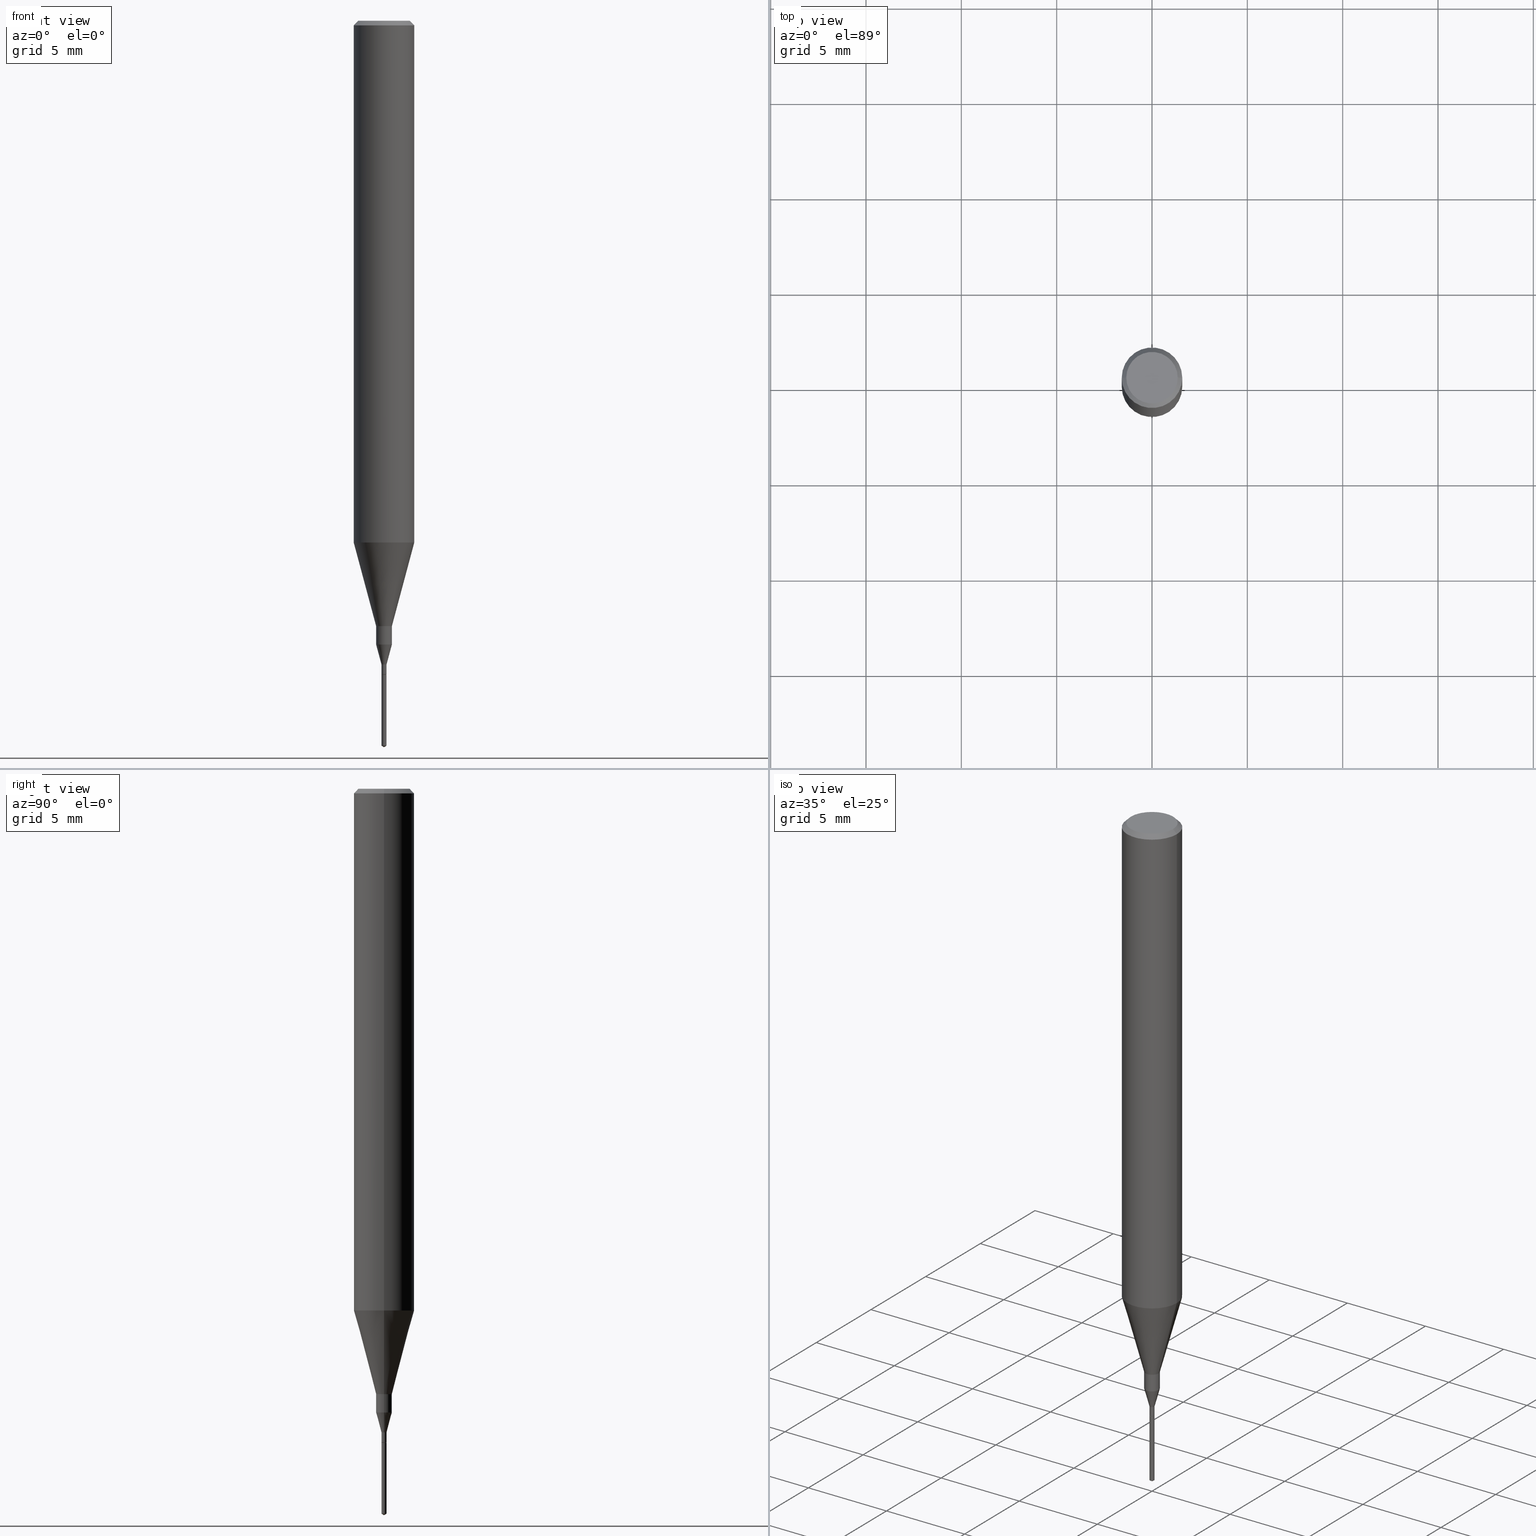
[diagram: canonical four-view strip — front | top / right | iso, engineering-drawing reading convention]
A machine part, canonical four-view strip (front | top / right | iso — engineering-drawing reading convention). The complete STEP part file that produces these views, byte-faithful:
ISO-10303-21;
HEADER;
FILE_DESCRIPTION (( 'STEP AP203' ),
    '1' );
FILE_NAME ('07092.STEP',
    '2024-04-19T13:29:50',
    ( '' ),
    ( '' ),
    'SwSTEP 2.0',
    'SolidWorks 2023',
    '' );
FILE_SCHEMA (( 'CONFIG_CONTROL_DESIGN' ));
ENDSEC;

DATA;
#1 = CARTESIAN_POINT ( 'NONE',  ( 2.292627005798580623E-31, -3.273263755165470184E-17, -0.009375000000000060368 ) ) ;
#2 = ORIENTED_EDGE ( 'NONE', *, *, #30, .T. ) ;
#3 = DATE_AND_TIME ( #411, #558 ) ;
#4 = EDGE_CURVE ( 'NONE', #181, #564, #294, .T. ) ;
#5 = CARTESIAN_POINT ( 'NONE',  ( -3.666055405781629191E-17, -0.005250000000005225313, -1.496845481750105122 ) ) ;
#6 = ORIENTED_EDGE ( 'NONE', *, *, #193, .T. ) ;
#7 = VECTOR ( 'NONE', #198, 39.37007874015748143 ) ;
#8 = SECURITY_CLASSIFICATION_LEVEL ( 'unclassified' ) ;
#9 = AXIS2_PLACEMENT_3D ( 'NONE', #542, #92, #83 ) ;
#10 = CC_DESIGN_APPROVAL ( #590, ( #425 ) ) ;
#11 = FACE_OUTER_BOUND ( 'NONE', #12, .T. ) ;
#12 = EDGE_LOOP ( 'NONE', ( #6, #280, #59, #104 ) ) ;
#13 = ORIENTED_EDGE ( 'NONE', *, *, #193, .F. ) ;
#14 = COORDINATED_UNIVERSAL_TIME_OFFSET ( 5, 0, .BEHIND. ) ;
#15 = VERTEX_POINT ( 'NONE', #292 ) ;
#16 = CONICAL_SURFACE ( 'NONE', #342, 0.01625000000000000056, 0.2617993877991502960 ) ;
#17 = EDGE_LOOP ( 'NONE', ( #184, #224, #277, #373 ) ) ;
#18 = APPLICATION_CONTEXT ( 'configuration controlled 3d designs of mechanical parts and assemblies' ) ;
#19 = CARTESIAN_POINT ( 'NONE',  ( 3.301382888349935078E-29, -4.713499807438246596E-15, -1.350000000000000089 ) ) ;
#20 = ORIENTED_EDGE ( 'NONE', *, *, #4, .F. ) ;
#21 = DIRECTION ( 'NONE',  ( 1.000000000000000000, -6.982962677686267499E-15, 4.876176775795936353E-29 ) ) ;
#22 = EDGE_CURVE ( 'NONE', #181, #191, #100, .T. ) ;
#23 = ORIENTED_EDGE ( 'NONE', *, *, #532, .F. ) ;
#24 = DIRECTION ( 'NONE',  ( -2.449828643397946418E-29, 3.485237803807878340E-15, 1.000000000000000000 ) ) ;
#25 = VECTOR ( 'NONE', #428, 39.37007874015748143 ) ;
#26 = CIRCLE ( 'NONE', #415, 0.06250000000000000000 ) ;
#27 = CARTESIAN_POINT ( 'NONE',  ( 0.01624999999999999709, -1.134731435124018242E-16, 7.923787260668394963E-31 ) ) ;
#28 = DIRECTION ( 'NONE',  ( -2.445468806185136597E-29, 3.491481338843145583E-15, 1.000000000000000000 ) ) ;
#29 = ORIENTED_EDGE ( 'NONE', *, *, #485, .T. ) ;
#30 = EDGE_CURVE ( 'NONE', #564, #478, #195, .T. ) ;
#31 = CARTESIAN_POINT ( 'NONE',  ( -0.05312499999999999861, 3.873362110279099094E-16, -5.787680772773044021E-18 ) ) ;
#32 = CARTESIAN_POINT ( 'NONE',  ( 3.149635291256962736E-29, -4.496844456069888565E-15, -1.287947441116742864 ) ) ;
#33 = APPROVAL ( #39, 'UNSPECIFIED' ) ;
#34 = CARTESIAN_POINT ( 'NONE',  ( 0.000000000000000000, 0.000000000000000000, 0.000000000000000000 ) ) ;
#35 = DIRECTION ( 'NONE',  ( -2.445468806185136877E-29, 3.491481338843145188E-15, 1.000000000000000000 ) ) ;
#36 = APPROVAL_PERSON_ORGANIZATION ( #447, #33, #400 ) ;
#37 = DIRECTION ( 'NONE',  ( -2.445468806185136597E-29, 3.491481338843145583E-15, 1.000000000000000000 ) ) ;
#38 = PLANE ( 'NONE',  #324 ) ;
#39 = APPROVAL_STATUS ( 'not_yet_approved' ) ;
#40 = EDGE_CURVE ( 'NONE', #552, #419, #433, .T. ) ;
#41 = CARTESIAN_POINT ( 'NONE',  ( 3.301382888349935078E-29, -4.713499807438246596E-15, -1.350000000000000089 ) ) ;
#42 = DIRECTION ( 'NONE',  ( 1.000000000000000000, 0.000000000000000000, 0.000000000000000000 ) ) ;
#43 = DIRECTION ( 'NONE',  ( -6.982962677686265133E-15, -1.000000000000000000, 0.000000000000000000 ) ) ;
#44 = ORIENTED_EDGE ( 'NONE', *, *, #579, .T. ) ;
#45 = CIRCLE ( 'NONE', #110, 0.005249999999999999459 ) ;
#46 = CYLINDRICAL_SURFACE ( 'NONE', #9, 0.005250000000000001193 ) ;
#47 = DIRECTION ( 'NONE',  ( 2.445468806185136597E-29, -3.491481338843145583E-15, -1.000000000000000000 ) ) ;
#48 = VERTEX_POINT ( 'NONE', #338 ) ;
#49 =( LENGTH_UNIT ( ) NAMED_UNIT ( * ) SI_UNIT ( $, .METRE. ) );
#50 = CARTESIAN_POINT ( 'NONE',  ( 3.300160153946842277E-29, -4.711754066768825092E-15, -1.349500000000000144 ) ) ;
#51 = ORIENTED_EDGE ( 'NONE', *, *, #371, .F. ) ;
#52 = PERSON_AND_ORGANIZATION_ROLE ( 'design_owner' ) ;
#53 = LINE ( 'NONE', #135, #194 ) ;
#54 = ORIENTED_EDGE ( 'NONE', *, *, #407, .T. ) ;
#55 = VECTOR ( 'NONE', #367, 39.37007874015748143 ) ;
#56 = AXIS2_PLACEMENT_3D ( 'NONE', #208, #155, #339 ) ;
#57 = EDGE_LOOP ( 'NONE', ( #246, #382, #370, #61 ) ) ;
#58 = EDGE_CURVE ( 'NONE', #516, #234, #525, .T. ) ;
#59 = ORIENTED_EDGE ( 'NONE', *, *, #290, .F. ) ;
#60 = COORDINATED_UNIVERSAL_TIME_OFFSET ( 5, 0, .BEHIND. ) ;
#61 = ORIENTED_EDGE ( 'NONE', *, *, #514, .F. ) ;
#62 = DIRECTION ( 'NONE',  ( -2.445468806185136597E-29, 3.491481338843145583E-15, 1.000000000000000000 ) ) ;
#63 = CIRCLE ( 'NONE', #156, 0.05312499999999999861 ) ;
#64 = CARTESIAN_POINT ( 'NONE',  ( 0.005250000000000054970, -3.666055405785328825E-17, 2.559992807292892898E-31 ) ) ;
#65 = ADVANCED_FACE ( 'NONE', ( #153 ), #126, .T. ) ;
#66 = DIRECTION ( 'NONE',  ( 0.2588190451025216277, 1.565188264969619995E-15, 0.9659258262890679791 ) ) ;
#67 = EDGE_LOOP ( 'NONE', ( #190, #29, #13, #51 ) ) ;
#68 = CARTESIAN_POINT ( 'NONE',  ( 0.005250000000000100940, -4.676839253380394232E-15, -1.328999999999999959 ) ) ;
#69 = VERTEX_POINT ( 'NONE', #399 ) ;
#70 = CARTESIAN_POINT ( 'NONE',  ( 3.661129155694912763E-29, -5.225291231752093132E-15, -1.496845481750105122 ) ) ;
#71 = AXIS2_PLACEMENT_3D ( 'NONE', #245, #409, #21 ) ;
#72 = EDGE_CURVE ( 'NONE', #509, #230, #487, .T. ) ;
#73 = VECTOR ( 'NONE', #232, 39.37007874015747433 ) ;
#74 = CARTESIAN_POINT ( 'NONE',  ( -0.005250000000000054970, 3.730349362740565034E-17, -2.582440922383852549E-31 ) ) ;
#75 = DIRECTION ( 'NONE',  ( 1.000000000000000000, -6.982962677686266711E-15, 4.876176775795935793E-29 ) ) ;
#76 = LINE ( 'NONE', #493, #173 ) ;
#77 = CARTESIAN_POINT ( 'NONE',  ( 2.634730117954813298E-29, -3.761696332605275695E-15, -1.077392650149939346 ) ) ;
#78 = LINE ( 'NONE', #260, #295 ) ;
#79 = LINE ( 'NONE', #215, #91 ) ;
#80 = VECTOR ( 'NONE', #401, 39.37007874015748854 ) ;
#81 = LINE ( 'NONE', #171, #212 ) ;
#82 = AXIS2_PLACEMENT_3D ( 'NONE', #267, #182, #86 ) ;
#83 = DIRECTION ( 'NONE',  ( -6.982962677686265133E-15, -1.000000000000000000, 0.000000000000000000 ) ) ;
#84 = EDGE_CURVE ( 'NONE', #323, #48, #434, .T. ) ;
#85 = CARTESIAN_POINT ( 'NONE',  ( -0.004750000000000000749, -4.677099800315530409E-15, -1.350000000000000089 ) ) ;
#86 = DIRECTION ( 'NONE',  ( 1.000000000000000000, -6.982962677686274599E-15, 0.000000000000000000 ) ) ;
#87 = APPLICATION_CONTEXT ( 'configuration controlled 3d designs of mechanical parts and assemblies' ) ;
#88 = DIRECTION ( 'NONE',  ( -2.445468806185136597E-29, 3.491481338843145583E-15, 1.000000000000000000 ) ) ;
#89 = CARTESIAN_POINT ( 'NONE',  ( 0.000000000000000000, 0.000000000000000000, 0.000000000000000000 ) ) ;
#90 = AXIS2_PLACEMENT_3D ( 'NONE', #329, #183, #377 ) ;
#91 = VECTOR ( 'NONE', #300, 39.37007874015748143 ) ;
#92 = DIRECTION ( 'NONE',  ( -2.449828643397946418E-29, 3.485237803807878340E-15, 1.000000000000000000 ) ) ;
#93 = CARTESIAN_POINT ( 'NONE',  ( -0.06250000000000006939, 4.440892098500631092E-16, -3.074334431409319267E-30 ) ) ;
#94 = ORIENTED_EDGE ( 'NONE', *, *, #72, .T. ) ;
#95 = FACE_OUTER_BOUND ( 'NONE', #376, .T. ) ;
#96 = CARTESIAN_POINT ( 'NONE',  ( 2.292627005798580623E-31, -3.273263755165470184E-17, -0.009375000000000060368 ) ) ;
#97 = ORIENTED_EDGE ( 'NONE', *, *, #204, .F. ) ;
#98 = DIRECTION ( 'NONE',  ( -2.449828643397946418E-29, 3.485237803807878340E-15, 1.000000000000000000 ) ) ;
#99 = VERTEX_POINT ( 'NONE', #301 ) ;
#100 = CIRCLE ( 'NONE', #361, 0.004750000000000000749 ) ;
#101 = ADVANCED_FACE ( 'NONE', ( #348 ), #306, .F. ) ;
#102 = ORIENTED_EDGE ( 'NONE', *, *, #231, .F. ) ;
#103 = CC_DESIGN_DATE_AND_TIME_ASSIGNMENT ( #186, #366, ( #425 ) ) ;
#104 = ORIENTED_EDGE ( 'NONE', *, *, #40, .F. ) ;
#105 = ORIENTED_EDGE ( 'NONE', *, *, #84, .F. ) ;
#106 = ADVANCED_FACE ( 'NONE', ( #538 ), #127, .T. ) ;
#107 = PERSON_AND_ORGANIZATION_ROLE ( 'design_supplier' ) ;
#108 = VECTOR ( 'NONE', #386, 39.37007874015748143 ) ;
#109 = DIRECTION ( 'NONE',  ( 0.7071067811865454633, -7.319954787623246579E-15, -0.7071067811865493491 ) ) ;
#110 = AXIS2_PLACEMENT_3D ( 'NONE', #70, #24, #161 ) ;
#111 = CC_DESIGN_APPROVAL ( #33, ( #375 ) ) ;
#112 = EDGE_LOOP ( 'NONE', ( #388, #417, #456, #313 ) ) ;
#113 = CYLINDRICAL_SURFACE ( 'NONE', #344, 0.06250000000000006939 ) ;
#114 = ORIENTED_EDGE ( 'NONE', *, *, #543, .F. ) ;
#115 = CYLINDRICAL_SURFACE ( 'NONE', #138, 0.005250000000000054970 ) ;
#116 = ORIENTED_EDGE ( 'NONE', *, *, #407, .F. ) ;
#117 = DIRECTION ( 'NONE',  ( 2.449828643397946138E-29, -3.485237803807878340E-15, -1.000000000000000000 ) ) ;
#118 = EDGE_CURVE ( 'NONE', #234, #478, #119, .T. ) ;
#119 = CIRCLE ( 'NONE', #479, 0.005250000000000100940 ) ;
#120 = ORIENTED_EDGE ( 'NONE', *, *, #118, .F. ) ;
#121 = CARTESIAN_POINT ( 'NONE',  ( 2.634730117954813298E-29, -3.761696332605275695E-15, -1.077392650149939346 ) ) ;
#122 = CARTESIAN_POINT ( 'NONE',  ( 2.634730117954813298E-29, -3.761696332605275695E-15, -1.077392650149939346 ) ) ;
#123 = DIRECTION ( 'NONE',  ( -2.445468806185136597E-29, 3.491481338843145583E-15, 1.000000000000000000 ) ) ;
#124 = LINE ( 'NONE', #439, #518 ) ;
#125 = EDGE_CURVE ( 'NONE', #274, #15, #76, .T. ) ;
#126 = CONICAL_SURFACE ( 'NONE', #414, 0.01625000000000000056, 0.2617993877991502960 ) ;
#127 = CYLINDRICAL_SURFACE ( 'NONE', #469, 0.005250000000000001193 ) ;
#128 = ORIENTED_EDGE ( 'NONE', *, *, #84, .T. ) ;
#129 = DIRECTION ( 'NONE',  ( -0.7071067811866248443, 7.493145998870633417E-15, 0.7071067811864701902 ) ) ;
#130 = DIRECTION ( 'NONE',  ( -2.449828643397946418E-29, 3.485237803807878340E-15, 1.000000000000000000 ) ) ;
#131 = ADVANCED_FACE ( 'NONE', ( #449 ), #566, .T. ) ;
#132 = LINE ( 'NONE', #508, #55 ) ;
#133 = EDGE_LOOP ( 'NONE', ( #561, #318, #555, #406 ) ) ;
#134 = CALENDAR_DATE ( 2024, 19, 4 ) ;
#135 = CARTESIAN_POINT ( 'NONE',  ( 0.01625000000000000056, -4.610317599582291030E-15, -1.287947441116742864 ) ) ;
#136 = CLOSED_SHELL ( 'NONE', ( #106, #426, #568, #575, #421 ) ) ;
#137 = ORIENTED_EDGE ( 'NONE', *, *, #268, .F. ) ;
#138 = AXIS2_PLACEMENT_3D ( 'NONE', #486, #534, #393 ) ;
#139 =( NAMED_UNIT ( * ) SI_UNIT ( $, .STERADIAN. ) SOLID_ANGLE_UNIT ( ) );
#140 = CARTESIAN_POINT ( 'NONE',  ( 3.056836007731421306E-29, -4.364351673553932471E-15, -1.250000000000000000 ) ) ;
#141 = ORIENTED_EDGE ( 'NONE', *, *, #72, .F. ) ;
#142 = DATE_AND_TIME ( #464, #202 ) ;
#143 = CARTESIAN_POINT ( 'NONE',  ( 0.06250000000000000000, -4.691678049070463404E-16, -0.009375000000000060368 ) ) ;
#144 = ORIENTED_EDGE ( 'NONE', *, *, #532, .T. ) ;
#145 = EDGE_CURVE ( 'NONE', #15, #431, #252, .T. ) ;
#146 = ORIENTED_EDGE ( 'NONE', *, *, #223, .F. ) ;
#147 = VECTOR ( 'NONE', #364, 39.37007874015748143 ) ;
#148 = PRODUCT_RELATED_PRODUCT_CATEGORY ( 'detail', '', ( #494 ) ) ;
#149 = ORIENTED_EDGE ( 'NONE', *, *, #223, .T. ) ;
#150 = ADVANCED_FACE ( 'NONE', ( #544 ), #38, .F. ) ;
#151 = CARTESIAN_POINT ( 'NONE',  ( 3.301382888349935078E-29, -4.713499807438246596E-15, -1.350000000000000089 ) ) ;
#152 = DIRECTION ( 'NONE',  ( 1.000000000000000000, -6.982962677686267499E-15, 4.876176775795935232E-29 ) ) ;
#153 = FACE_OUTER_BOUND ( 'NONE', #67, .T. ) ;
#154 = AXIS2_PLACEMENT_3D ( 'NONE', #169, #584, #355 ) ;
#155 = DIRECTION ( 'NONE',  ( -2.449828643397946418E-29, 3.485237803807878340E-15, 1.000000000000000000 ) ) ;
#156 = AXIS2_PLACEMENT_3D ( 'NONE', #296, #37, #432 ) ;
#157 = CARTESIAN_POINT ( 'NONE',  ( 0.004750000000000000749, -4.746668880157255952E-15, -1.350000000000000089 ) ) ;
#158 = DIRECTION ( 'NONE',  ( -2.445468806185136597E-29, 3.491481338843145583E-15, 1.000000000000000000 ) ) ;
#159 = EDGE_LOOP ( 'NONE', ( #413, #44, #2, #120 ) ) ;
#160 = ADVANCED_FACE ( 'NONE', ( #442 ), #482, .T. ) ;
#161 = DIRECTION ( 'NONE',  ( -6.982962677686265922E-15, -1.000000000000000000, 0.000000000000000000 ) ) ;
#162 = ORIENTED_EDGE ( 'NONE', *, *, #429, .F. ) ;
#163 = DIRECTION ( 'NONE',  ( -6.982962677686265922E-15, -1.000000000000000000, 0.000000000000000000 ) ) ;
#164 = CIRCLE ( 'NONE', #372, 0.01624999999999999709 ) ;
#165 =( GEOMETRIC_REPRESENTATION_CONTEXT ( 3 ) GLOBAL_UNCERTAINTY_ASSIGNED_CONTEXT ( ( #396 ) ) GLOBAL_UNIT_ASSIGNED_CONTEXT ( ( #360, #499, #139 ) ) REPRESENTATION_CONTEXT ( 'NONE', 'WORKASPACE' ) );
#166 = DIRECTION ( 'NONE',  ( 1.000000000000000000, -6.982962677686177569E-15, 0.000000000000000000 ) ) ;
#167 = CARTESIAN_POINT ( 'NONE',  ( 2.634730117954813298E-29, -3.761696332605275695E-15, -1.077392650149939346 ) ) ;
#168 = EDGE_CURVE ( 'NONE', #191, #516, #81, .T. ) ;
#169 = CARTESIAN_POINT ( 'NONE',  ( 3.301382888349935078E-29, -4.713499807438246596E-15, -1.350000000000000089 ) ) ;
#170 = COORDINATED_UNIVERSAL_TIME_OFFSET ( 5, 0, .BEHIND. ) ;
#171 = CARTESIAN_POINT ( 'NONE',  ( -0.004750000000000000749, -4.679749027489641610E-15, -1.350000000000000089 ) ) ;
#172 = CARTESIAN_POINT ( 'NONE',  ( 2.292627005798580623E-31, -3.273263755165470184E-17, -0.009375000000000060368 ) ) ;
#173 = VECTOR ( 'NONE', #541, 39.37007874015748143 ) ;
#174 = DIRECTION ( 'NONE',  ( -2.445468806185136597E-29, 3.491481338843145583E-15, 1.000000000000000000 ) ) ;
#175 = CONICAL_SURFACE ( 'NONE', #462, 0.06250000000000000000, 0.7853981633974456145 ) ;
#176 = COORDINATED_UNIVERSAL_TIME_OFFSET ( 5, 0, .BEHIND. ) ;
#177 = DIRECTION ( 'NONE',  ( -2.449828643397946418E-29, 3.485237803807878340E-15, 1.000000000000000000 ) ) ;
#178 = PERSON_AND_ORGANIZATION ( #327, #222 ) ;
#179 = CC_DESIGN_PERSON_AND_ORGANIZATION_ASSIGNMENT ( #238, #513, ( #425 ) ) ;
#180 = CYLINDRICAL_SURFACE ( 'NONE', #71, 0.01624999999999999709 ) ;
#181 = VERTEX_POINT ( 'NONE', #535 ) ;
#182 = DIRECTION ( 'NONE',  ( -2.445468806185136597E-29, 3.491481338843145583E-15, 1.000000000000000000 ) ) ;
#183 = DIRECTION ( 'NONE',  ( -2.445468806185136597E-29, 3.491481338843145583E-15, 1.000000000000000000 ) ) ;
#184 = ORIENTED_EDGE ( 'NONE', *, *, #485, .F. ) ;
#185 = AXIS2_PLACEMENT_3D ( 'NONE', #583, #130, #308 ) ;
#186 = DATE_AND_TIME ( #321, #520 ) ;
#187 = DIRECTION ( 'NONE',  ( -2.445468806185136597E-29, 3.491481338843145583E-15, 1.000000000000000000 ) ) ;
#188 = EDGE_CURVE ( 'NONE', #419, #323, #124, .T. ) ;
#189 = ORIENTED_EDGE ( 'NONE', *, *, #22, .F. ) ;
#190 = ORIENTED_EDGE ( 'NONE', *, *, #211, .T. ) ;
#191 = VERTEX_POINT ( 'NONE', #85 ) ;
#192 = CIRCLE ( 'NONE', #528, 0.06250000000000000000 ) ;
#193 = EDGE_CURVE ( 'NONE', #552, #567, #242, .T. ) ;
#194 = VECTOR ( 'NONE', #66, 39.37007874015748143 ) ;
#195 = LINE ( 'NONE', #64, #352 ) ;
#196 = PERSON_AND_ORGANIZATION ( #327, #222 ) ;
#197 = FACE_OUTER_BOUND ( 'NONE', #350, .T. ) ;
#198 = DIRECTION ( 'NONE',  ( -2.445468806185136877E-29, 3.491481338843145188E-15, 1.000000000000000000 ) ) ;
#199 = DIRECTION ( 'NONE',  ( -2.445468806185136597E-29, 3.491481338843145583E-15, 1.000000000000000000 ) ) ;
#200 = ORIENTED_EDGE ( 'NONE', *, *, #30, .F. ) ;
#201 = DIRECTION ( 'NONE',  ( -2.449828643397946418E-29, 3.485237803807878340E-15, 1.000000000000000000 ) ) ;
#202 = LOCAL_TIME ( 9, 29, 50.00000000000000000, #14 ) ;
#203 = ORIENTED_EDGE ( 'NONE', *, *, #188, .F. ) ;
#204 = EDGE_CURVE ( 'NONE', #567, #547, #303, .T. ) ;
#205 = CARTESIAN_POINT ( 'NONE',  ( -0.005250000000000009000, -4.674450573141419996E-15, -1.349500000000000144 ) ) ;
#206 = ORIENTED_EDGE ( 'NONE', *, *, #125, .T. ) ;
#207 = CC_DESIGN_DATE_AND_TIME_ASSIGNMENT ( #581, #265, ( #536 ) ) ;
#208 = CARTESIAN_POINT ( 'NONE',  ( -9.278108940561071411E-28, 1.319778012860802633E-13, 37.87007874015748143 ) ) ;
#209 = DIRECTION ( 'NONE',  ( -2.445468806185136597E-29, 3.491481338843145583E-15, 1.000000000000000000 ) ) ;
#210 = DIRECTION ( 'NONE',  ( 1.000000000000000000, -6.982962677686264344E-15, 0.000000000000000000 ) ) ;
#211 = EDGE_CURVE ( 'NONE', #478, #234, #262, .T. ) ;
#212 = VECTOR ( 'NONE', #129, 39.37007874015748143 ) ;
#213 = CIRCLE ( 'NONE', #235, 0.005249999999999999459 ) ;
#214 = CARTESIAN_POINT ( 'NONE',  ( -0.06250000000000000000, -1.453125275228401137E-15, -0.009375000000000060368 ) ) ;
#215 = CARTESIAN_POINT ( 'NONE',  ( 3.662971404622334007E-29, -5.244714250307038079E-15, -1.500000000000000222 ) ) ;
#216 = DIRECTION ( 'NONE',  ( 1.000000000000000000, -6.982962677686336919E-15, 0.000000000000000000 ) ) ;
#217 = EDGE_LOOP ( 'NONE', ( #320, #379 ) ) ;
#218 = DIRECTION ( 'NONE',  ( -2.445468806185136877E-29, 3.491481338843145188E-15, 1.000000000000000000 ) ) ;
#219 = APPROVAL_STATUS ( 'not_yet_approved' ) ;
#220 = CIRCLE ( 'NONE', #557, 0.005250000000000001193 ) ;
#221 = CARTESIAN_POINT ( 'NONE',  ( 0.000000000000000000, 0.000000000000000000, 0.000000000000000000 ) ) ;
#222 = ORGANIZATION ( 'UNSPECIFIED', 'UNSPECIFIED', '' ) ;
#223 = EDGE_CURVE ( 'NONE', #323, #282, #78, .T. ) ;
#224 = ORIENTED_EDGE ( 'NONE', *, *, #118, .T. ) ;
#225 = DIRECTION ( 'NONE',  ( 0.000000000000000000, 0.000000000000000000, 1.000000000000000000 ) ) ;
#226 = CYLINDRICAL_SURFACE ( 'NONE', #391, 0.005250000000000054970 ) ;
#227 = ORIENTED_EDGE ( 'NONE', *, *, #378, .F. ) ;
#228 = APPLICATION_PROTOCOL_DEFINITION ( 'international standard', 'config_control_design', 1994, #18 ) ;
#229 = DIRECTION ( 'NONE',  ( -2.445468806185136597E-29, 3.491481338843145583E-15, 1.000000000000000000 ) ) ;
#230 = VERTEX_POINT ( 'NONE', #214 ) ;
#231 = EDGE_CURVE ( 'NONE', #69, #282, #395, .T. ) ;
#232 = DIRECTION ( 'NONE',  ( -0.2588190451025214611, 5.211531920934551042E-15, 0.9659258262890682012 ) ) ;
#233 = VECTOR ( 'NONE', #218, 39.37007874015748143 ) ;
#234 = VERTEX_POINT ( 'NONE', #427 ) ;
#235 = AXIS2_PLACEMENT_3D ( 'NONE', #257, #201, #163 ) ;
#236 = EDGE_LOOP ( 'NONE', ( #503, #341, #105, #203 ) ) ;
#237 = MANIFOLD_SOLID_BREP ( 'Body-Move/Copy2[1]', #136 ) ;
#238 = PERSON_AND_ORGANIZATION ( #327, #222 ) ;
#239 = ORIENTED_EDGE ( 'NONE', *, *, #585, .F. ) ;
#240 = ADVANCED_FACE ( 'NONE', ( #11 ), #180, .T. ) ;
#241 = DIRECTION ( 'NONE',  ( -2.445468806185136597E-29, 3.491481338843145583E-15, 1.000000000000000000 ) ) ;
#242 = CIRCLE ( 'NONE', #498, 0.01625000000000000056 ) ;
#243 = AXIS2_PLACEMENT_3D ( 'NONE', #140, #430, #455 ) ;
#244 = AXIS2_PLACEMENT_3D ( 'NONE', #335, #117, #261 ) ;
#245 = CARTESIAN_POINT ( 'NONE',  ( 0.000000000000000000, 0.000000000000000000, 0.000000000000000000 ) ) ;
#246 = ORIENTED_EDGE ( 'NONE', *, *, #398, .F. ) ;
#247 = DIRECTION ( 'NONE',  ( -2.445468806185136597E-29, 3.491481338843145583E-15, 1.000000000000000000 ) ) ;
#248 = ORIENTED_EDGE ( 'NONE', *, *, #331, .T. ) ;
#249 = CARTESIAN_POINT ( 'NONE',  ( -0.01625000000000000056, -4.381381261508872379E-15, -1.287947441116742864 ) ) ;
#250 = ADVANCED_FACE ( 'NONE', ( #472 ), #16, .T. ) ;
#251 = DIRECTION ( 'NONE',  ( -2.445468806185136877E-29, 3.491481338843145188E-15, 1.000000000000000000 ) ) ;
#252 = CIRCLE ( 'NONE', #586, 0.005250000000000001193 ) ;
#253 = FACE_OUTER_BOUND ( 'NONE', #330, .T. ) ;
#254 = AXIS2_PLACEMENT_3D ( 'NONE', #387, #123, #385 ) ;
#255 = CC_DESIGN_PERSON_AND_ORGANIZATION_ASSIGNMENT ( #402, #545, ( #536 ) ) ;
#256 = CARTESIAN_POINT ( 'NONE',  ( 3.149635291256962736E-29, -4.496844456069888565E-15, -1.287947441116742864 ) ) ;
#257 = CARTESIAN_POINT ( 'NONE',  ( 3.661129155694912763E-29, -5.225291231752093132E-15, -1.496845481750105122 ) ) ;
#258 = DIRECTION ( 'NONE',  ( -1.000000000000000000, 6.982962677686265922E-15, -4.876176775795935793E-29 ) ) ;
#259 = LINE ( 'NONE', #249, #540 ) ;
#260 = CARTESIAN_POINT ( 'NONE',  ( 0.06250000000000006939, -4.364351673553921624E-16, 3.047610484872463374E-30 ) ) ;
#261 = DIRECTION ( 'NONE',  ( 6.982962677686265922E-15, 1.000000000000000000, -3.485237803807878340E-15 ) ) ;
#262 = CIRCLE ( 'NONE', #548, 0.005250000000000100940 ) ;
#263 = AXIS2_PLACEMENT_3D ( 'NONE', #121, #158, #481 ) ;
#264 = DIRECTION ( 'NONE',  ( 1.000000000000000000, -6.982962677686264344E-15, 0.000000000000000000 ) ) ;
#265 = DATE_TIME_ROLE ( 'creation_date' ) ;
#266 = DIRECTION ( 'NONE',  ( -2.445468806185136597E-29, 3.491481338843145583E-15, 1.000000000000000000 ) ) ;
#267 = CARTESIAN_POINT ( 'NONE',  ( 3.300160153946842277E-29, -4.711754066768825092E-15, -1.349500000000000144 ) ) ;
#268 = EDGE_CURVE ( 'NONE', #282, #230, #192, .T. ) ;
#269 = CARTESIAN_POINT ( 'NONE',  ( -0.06250000000000000000, 4.037025298037369984E-16, -0.009375000000000060368 ) ) ;
#270 = APPROVAL_ROLE ( '' ) ;
#271 = DIRECTION ( 'NONE',  ( -2.445468806185136597E-29, 3.491481338843145583E-15, 1.000000000000000000 ) ) ;
#272 = CONICAL_SURFACE ( 'NONE', #185, 65.52281426576405465, 1.029744258676625002 ) ;
#273 = FACE_OUTER_BOUND ( 'NONE', #284, .T. ) ;
#274 = VERTEX_POINT ( 'NONE', #380 ) ;
#275 = ADVANCED_FACE ( 'NONE', ( #197 ), #403, .T. ) ;
#276 = CARTESIAN_POINT ( 'NONE',  ( 0.06250000000000012490, -4.198131499960668153E-15, -1.077392650149939346 ) ) ;
#277 = ORIENTED_EDGE ( 'NONE', *, *, #371, .T. ) ;
#278 = CC_DESIGN_PERSON_AND_ORGANIZATION_ASSIGNMENT ( #504, #52, ( #494 ) ) ;
#279 = CARTESIAN_POINT ( 'NONE',  ( -0.06250000000000012490, -3.317607122755211895E-15, -1.077392650149939346 ) ) ;
#280 = ORIENTED_EDGE ( 'NONE', *, *, #204, .T. ) ;
#281 = APPROVAL_ROLE ( '' ) ;
#282 = VERTEX_POINT ( 'NONE', #143 ) ;
#283 = PERSON_AND_ORGANIZATION_ROLE ( 'creator' ) ;
#284 = EDGE_LOOP ( 'NONE', ( #114, #466, #458, #141 ) ) ;
#285 = ORIENTED_EDGE ( 'NONE', *, *, #585, .T. ) ;
#286 = VECTOR ( 'NONE', #531, 39.37007874015748143 ) ;
#287 = CALENDAR_DATE ( 2024, 19, 4 ) ;
#288 = CARTESIAN_POINT ( 'NONE',  ( 3.149635291256962736E-29, -4.496844456069888565E-15, -1.287947441116742864 ) ) ;
#289 = EDGE_LOOP ( 'NONE', ( #189, #227 ) ) ;
#290 = EDGE_CURVE ( 'NONE', #419, #547, #164, .T. ) ;
#291 = DIRECTION ( 'NONE',  ( -2.445468806185136597E-29, 3.491481338843145583E-15, 1.000000000000000000 ) ) ;
#292 = CARTESIAN_POINT ( 'NONE',  ( 3.730349362744188864E-17, 0.005249999999995287082, -1.350000000000000089 ) ) ;
#293 = CARTESIAN_POINT ( 'NONE',  ( -3.666055405781988492E-17, -0.005250000000004714437, -1.350000000000000089 ) ) ;
#294 = LINE ( 'NONE', #157, #25 ) ;
#295 = VECTOR ( 'NONE', #35, 39.37007874015748143 ) ;
#296 = CARTESIAN_POINT ( 'NONE',  ( 1.415359278996747967E-46, -2.020757941330909984E-32, -5.787680772770392401E-18 ) ) ;
#297 = CC_DESIGN_APPROVAL ( #571, ( #536 ) ) ;
#298 = ADVANCED_FACE ( 'NONE', ( #563 ), #226, .T. ) ;
#299 = CARTESIAN_POINT ( 'NONE',  ( 7.076796394983739835E-47, -1.010378970665454992E-32, -2.893840386385196200E-18 ) ) ;
#300 = DIRECTION ( 'NONE',  ( -5.985567269335837150E-15, -0.8571673007020953472, 0.5150380749100824662 ) ) ;
#301 = CARTESIAN_POINT ( 'NONE',  ( 3.674742965096920047E-29, -5.227856705711817904E-15, -1.500000000000000222 ) ) ;
#302 = FACE_OUTER_BOUND ( 'NONE', #437, .T. ) ;
#303 = LINE ( 'NONE', #345, #233 ) ;
#304 = LENGTH_MEASURE_WITH_UNIT ( LENGTH_MEASURE( 0.02539999999999999897 ), #49 );
#305 = CONICAL_SURFACE ( 'NONE', #56, 65.52281426576405465, 1.029744258676625002 ) ;
#306 = PLANE ( 'NONE',  #154 ) ;
#307 = ORIENTED_EDGE ( 'NONE', *, *, #349, .T. ) ;
#308 = DIRECTION ( 'NONE',  ( -6.982962677686265133E-15, -1.000000000000000000, 3.468864327941825745E-15 ) ) ;
#309 = CARTESIAN_POINT ( 'NONE',  ( 3.301382888349935078E-29, -4.713499807438246596E-15, -1.350000000000000089 ) ) ;
#310 = DIRECTION ( 'NONE',  ( -2.445468806185136597E-29, 3.491481338843145583E-15, 1.000000000000000000 ) ) ;
#311 = CC_DESIGN_PERSON_AND_ORGANIZATION_ASSIGNMENT ( #196, #107, ( #375 ) ) ;
#312 = DIRECTION ( 'NONE',  ( 1.000000000000000000, -6.982962677686266711E-15, 0.000000000000000000 ) ) ;
#313 = ORIENTED_EDGE ( 'NONE', *, *, #145, .F. ) ;
#314 = VECTOR ( 'NONE', #109, 39.37007874015748854 ) ;
#315 = CIRCLE ( 'NONE', #577, 0.005250000000000009000 ) ;
#316 = LINE ( 'NONE', #93, #147 ) ;
#317 = EDGE_CURVE ( 'NONE', #410, #431, #132, .T. ) ;
#318 = ORIENTED_EDGE ( 'NONE', *, *, #378, .T. ) ;
#319 = DIRECTION ( 'NONE',  ( 1.000000000000000000, -6.982962677686274599E-15, 0.000000000000000000 ) ) ;
#320 = ORIENTED_EDGE ( 'NONE', *, *, #429, .T. ) ;
#321 = CALENDAR_DATE ( 2024, 19, 4 ) ;
#322 = DIRECTION ( 'NONE',  ( 1.000000000000000000, -6.982962677686288799E-15, 0.000000000000000000 ) ) ;
#323 = VERTEX_POINT ( 'NONE', #276 ) ;
#324 = AXIS2_PLACEMENT_3D ( 'NONE', #299, #576, #258 ) ;
#325 = EDGE_LOOP ( 'NONE', ( #102, #162, #94, #285 ) ) ;
#326 = ORIENTED_EDGE ( 'NONE', *, *, #551, .T. ) ;
#327 = PERSON ( 'UNSPECIFIED', 'UNSPECIFIED', 'UNSPECIFIED', ('UNSPECIFIED'), ('UNSPECIFIED'), ('UNSPECIFIED') ) ;
#328 = ORIENTED_EDGE ( 'NONE', *, *, #317, .F. ) ;
#329 = CARTESIAN_POINT ( 'NONE',  ( 3.301382888349935078E-29, -4.713499807438246596E-15, -1.350000000000000089 ) ) ;
#330 = EDGE_LOOP ( 'NONE', ( #336, #422, #149, #239 ) ) ;
#331 = EDGE_CURVE ( 'NONE', #567, #552, #333, .T. ) ;
#332 = DIMENSIONAL_EXPONENTS ( 1.000000000000000000, 0.000000000000000000, 0.000000000000000000, 0.000000000000000000, 0.000000000000000000, 0.000000000000000000, 0.000000000000000000 ) ;
#333 = CIRCLE ( 'NONE', #383, 0.01625000000000000056 ) ;
#334 = CIRCLE ( 'NONE', #82, 0.005250000000000009000 ) ;
#335 = CARTESIAN_POINT ( 'NONE',  ( 3.301382888349935078E-29, -4.713499807438246596E-15, -1.350000000000000089 ) ) ;
#336 = ORIENTED_EDGE ( 'NONE', *, *, #340, .F. ) ;
#337 = FACE_OUTER_BOUND ( 'NONE', #159, .T. ) ;
#338 = CARTESIAN_POINT ( 'NONE',  ( -0.06250000000000012490, -3.317607122755211895E-15, -1.077392650149939346 ) ) ;
#339 = DIRECTION ( 'NONE',  ( -6.982962677686265133E-15, -1.000000000000000000, 3.468864327941825745E-15 ) ) ;
#340 = EDGE_CURVE ( 'NONE', #48, #230, #316, .T. ) ;
#341 = ORIENTED_EDGE ( 'NONE', *, *, #398, .T. ) ;
#342 = AXIS2_PLACEMENT_3D ( 'NONE', #288, #62, #517 ) ;
#343 = CARTESIAN_POINT ( 'NONE',  ( 3.674846187787069844E-29, -5.227856705711817904E-15, -1.500000000000000222 ) ) ;
#344 = AXIS2_PLACEMENT_3D ( 'NONE', #572, #291, #436 ) ;
#345 = CARTESIAN_POINT ( 'NONE',  ( -0.01624999999999999709, 1.154631945610162595E-16, -7.993269521664220284E-31 ) ) ;
#346 = FACE_OUTER_BOUND ( 'NONE', #325, .T. ) ;
#347 = DIRECTION ( 'NONE',  ( -2.445468806185136597E-29, 3.491481338843145583E-15, 1.000000000000000000 ) ) ;
#348 = FACE_OUTER_BOUND ( 'NONE', #289, .T. ) ;
#349 = EDGE_CURVE ( 'NONE', #431, #15, #220, .T. ) ;
#350 = EDGE_LOOP ( 'NONE', ( #515, #470, #116, #20 ) ) ;
#351 = DIRECTION ( 'NONE',  ( 1.000000000000000000, -6.982962677686266711E-15, 0.000000000000000000 ) ) ;
#352 = VECTOR ( 'NONE', #251, 39.37007874015748143 ) ;
#353 = AXIS2_PLACEMENT_3D ( 'NONE', #495, #225, #42 ) ;
#354 = CARTESIAN_POINT ( 'NONE',  ( 3.250028043420046385E-29, -4.640178699322540290E-15, -1.328999999999999959 ) ) ;
#355 = DIRECTION ( 'NONE',  ( 1.000000000000000000, -6.982962677686265922E-15, 4.876176775795935793E-29 ) ) ;
#356 = APPROVAL_DATE_TIME ( #3, #571 ) ;
#357 = ADVANCED_FACE ( 'NONE', ( #273 ), #480, .T. ) ;
#358 = CARTESIAN_POINT ( 'NONE',  ( 3.301382888349935078E-29, -4.713499807438246596E-15, -1.350000000000000089 ) ) ;
#359 = EDGE_LOOP ( 'NONE', ( #54, #368, #475, #200 ) ) ;
#360 =( CONVERSION_BASED_UNIT ( 'INCH', #304 ) LENGTH_UNIT ( ) NAMED_UNIT ( #332 ) );
#361 = AXIS2_PLACEMENT_3D ( 'NONE', #151, #241, #424 ) ;
#362 = CC_DESIGN_PERSON_AND_ORGANIZATION_ASSIGNMENT ( #418, #283, ( #375 ) ) ;
#363 = CONICAL_SURFACE ( 'NONE', #384, 0.06250000000000012490, 0.2617993877991501295 ) ;
#364 = DIRECTION ( 'NONE',  ( -2.445468806185136877E-29, 3.491481338843145188E-15, 1.000000000000000000 ) ) ;
#365 = ORIENTED_EDGE ( 'NONE', *, *, #454, .F. ) ;
#366 = DATE_TIME_ROLE ( 'classification_date' ) ;
#367 = DIRECTION ( 'NONE',  ( -2.449828643397946418E-29, 3.485237803807878340E-15, 1.000000000000000000 ) ) ;
#368 = ORIENTED_EDGE ( 'NONE', *, *, #58, .T. ) ;
#369 = COORDINATED_UNIVERSAL_TIME_OFFSET ( 5, 0, .BEHIND. ) ;
#370 = ORIENTED_EDGE ( 'NONE', *, *, #188, .T. ) ;
#371 = EDGE_CURVE ( 'NONE', #478, #552, #53, .T. ) ;
#372 = AXIS2_PLACEMENT_3D ( 'NONE', #550, #187, #322 ) ;
#373 = ORIENTED_EDGE ( 'NONE', *, *, #331, .F. ) ;
#374 = AXIS2_PLACEMENT_3D ( 'NONE', #19, #247, #416 ) ;
#375 = PRODUCT_DEFINITION_FORMATION_WITH_SPECIFIED_SOURCE ( 'ANY', '', #494, .NOT_KNOWN. ) ;
#376 = EDGE_LOOP ( 'NONE', ( #465, #519, #539 ) ) ;
#377 = DIRECTION ( 'NONE',  ( 1.000000000000000000, -6.982962677686177569E-15, 0.000000000000000000 ) ) ;
#378 = EDGE_CURVE ( 'NONE', #191, #181, #443, .T. ) ;
#379 = ORIENTED_EDGE ( 'NONE', *, *, #543, .T. ) ;
#380 = CARTESIAN_POINT ( 'NONE',  ( 3.730349362744186399E-17, 0.005249999999994775339, -1.496845481750105122 ) ) ;
#381 = EDGE_CURVE ( 'NONE', #547, #419, #435, .T. ) ;
#382 = ORIENTED_EDGE ( 'NONE', *, *, #381, .T. ) ;
#383 = AXIS2_PLACEMENT_3D ( 'NONE', #554, #271, #453 ) ;
#384 = AXIS2_PLACEMENT_3D ( 'NONE', #77, #523, #476 ) ;
#385 = DIRECTION ( 'NONE',  ( 1.000000000000000000, -6.982962677686266711E-15, 4.875930095424100059E-29 ) ) ;
#386 = DIRECTION ( 'NONE',  ( -2.445468806185136877E-29, 3.491481338843145188E-15, 1.000000000000000000 ) ) ;
#387 = CARTESIAN_POINT ( 'NONE',  ( 1.415359278996747967E-46, -2.020757941330909984E-32, -5.787680772770392401E-18 ) ) ;
#388 = ORIENTED_EDGE ( 'NONE', *, *, #125, .F. ) ;
#389 = CYLINDRICAL_SURFACE ( 'NONE', #489, 0.06250000000000006939 ) ;
#390 = DIRECTION ( 'NONE',  ( 1.000000000000000000, -6.982962677686258033E-15, 0.000000000000000000 ) ) ;
#391 = AXIS2_PLACEMENT_3D ( 'NONE', #89, #199, #152 ) ;
#392 = AXIS2_PLACEMENT_3D ( 'NONE', #1, #47, #546 ) ;
#393 = DIRECTION ( 'NONE',  ( 1.000000000000000000, -6.982962677686267499E-15, 4.876176775795935232E-29 ) ) ;
#394 = APPROVAL_PERSON_ORGANIZATION ( #420, #590, #281 ) ;
#395 = LINE ( 'NONE', #497, #314 ) ;
#396 = UNCERTAINTY_MEASURE_WITH_UNIT (LENGTH_MEASURE( 1.000000000000000082E-05 ), #360, 'distance_accuracy_value', 'NONE');
#397 = APPLICATION_PROTOCOL_DEFINITION ( 'international standard', 'config_control_design', 1994, #87 ) ;
#398 = EDGE_CURVE ( 'NONE', #547, #48, #412, .T. ) ;
#399 = CARTESIAN_POINT ( 'NONE',  ( 0.05312499999999999861, -4.129888592719939842E-16, -5.787680772767651417E-18 ) ) ;
#400 = APPROVAL_ROLE ( '' ) ;
#401 = DIRECTION ( 'NONE',  ( -0.7071067811865454633, 2.468850131082235761E-15, -0.7071067811865493491 ) ) ;
#402 = PERSON_AND_ORGANIZATION ( #327, #222 ) ;
#403 = CONICAL_SURFACE ( 'NONE', #90, 0.004750000000000000749, 0.7853981633975576360 ) ;
#404 = PRODUCT_DEFINITION_SHAPE ( 'NONE', 'NONE',  #536 ) ;
#405 = DIRECTION ( 'NONE',  ( -2.449828643397946418E-29, 3.485237803807878340E-15, 1.000000000000000000 ) ) ;
#406 = ORIENTED_EDGE ( 'NONE', *, *, #579, .F. ) ;
#407 = EDGE_CURVE ( 'NONE', #564, #516, #315, .T. ) ;
#408 = CARTESIAN_POINT ( 'NONE',  ( 0.01625000000000000056, -4.610317599582291030E-15, -1.287947441116742864 ) ) ;
#409 = DIRECTION ( 'NONE',  ( -2.445468806185136597E-29, 3.491481338843145583E-15, 1.000000000000000000 ) ) ;
#410 = VERTEX_POINT ( 'NONE', #5 ) ;
#411 = CALENDAR_DATE ( 2024, 19, 4 ) ;
#412 = LINE ( 'NONE', #279, #73 ) ;
#413 = ORIENTED_EDGE ( 'NONE', *, *, #58, .F. ) ;
#414 = AXIS2_PLACEMENT_3D ( 'NONE', #256, #573, #390 ) ;
#415 = AXIS2_PLACEMENT_3D ( 'NONE', #172, #310, #351 ) ;
#416 = DIRECTION ( 'NONE',  ( 1.000000000000000000, -6.982962677686177569E-15, 0.000000000000000000 ) ) ;
#417 = ORIENTED_EDGE ( 'NONE', *, *, #496, .T. ) ;
#418 = PERSON_AND_ORGANIZATION ( #327, #222 ) ;
#419 = VERTEX_POINT ( 'NONE', #505 ) ;
#420 = PERSON_AND_ORGANIZATION ( #327, #222 ) ;
#421 = ADVANCED_FACE ( 'NONE', ( #457 ), #444, .F. ) ;
#422 = ORIENTED_EDGE ( 'NONE', *, *, #514, .T. ) ;
#423 = CLOSED_SHELL ( 'NONE', ( #357, #450, #460, #240, #65, #298, #275, #101, #131, #445, #250, #160, #477, #507, #467, #150 ) ) ;
#424 = DIRECTION ( 'NONE',  ( 1.000000000000000000, -6.982962677686177569E-15, 0.000000000000000000 ) ) ;
#425 = SECURITY_CLASSIFICATION ( '', '', #8 ) ;
#426 = ADVANCED_FACE ( 'NONE', ( #302 ), #305, .T. ) ;
#427 = CARTESIAN_POINT ( 'NONE',  ( -0.005250000000000100940, -4.638662889418277990E-15, -1.328999999999999959 ) ) ;
#428 = DIRECTION ( 'NONE',  ( 0.7071067811866248443, -2.468850131083066826E-15, 0.7071067811864701902 ) ) ;
#429 = EDGE_CURVE ( 'NONE', #509, #69, #63, .T. ) ;
#430 = DIRECTION ( 'NONE',  ( -2.445468806185136597E-29, 3.491481338843145583E-15, 1.000000000000000000 ) ) ;
#431 = VERTEX_POINT ( 'NONE', #293 ) ;
#432 = DIRECTION ( 'NONE',  ( 1.000000000000000000, -6.982962677686266711E-15, 4.875930095424100059E-29 ) ) ;
#433 = LINE ( 'NONE', #27, #108 ) ;
#434 = CIRCLE ( 'NONE', #461, 0.06250000000000012490 ) ;
#435 = CIRCLE ( 'NONE', #243, 0.01624999999999999709 ) ;
#436 = DIRECTION ( 'NONE',  ( 1.000000000000000000, -6.982962677686266711E-15, 4.876176775795935793E-29 ) ) ;
#437 = EDGE_LOOP ( 'NONE', ( #365, #326, #23 ) ) ;
#438 = LINE ( 'NONE', #343, #286 ) ;
#439 = CARTESIAN_POINT ( 'NONE',  ( 0.06250000000000012490, -4.198131499960668153E-15, -1.077392650149939346 ) ) ;
#440 = MANIFOLD_SOLID_BREP ( 'Body-Move/Copy2[2]', #423 ) ;
#441 = DIRECTION ( 'NONE',  ( -0.2588190451025216277, 5.211531920934551831E-15, 0.9659258262890679791 ) ) ;
#442 = FACE_OUTER_BOUND ( 'NONE', #506, .T. ) ;
#443 = CIRCLE ( 'NONE', #374, 0.004750000000000000749 ) ;
#444 = PLANE ( 'NONE',  #244 ) ;
#445 = ADVANCED_FACE ( 'NONE', ( #337 ), #115, .T. ) ;
#446 = DIRECTION ( 'NONE',  ( 1.000000000000000000, -6.982962677686258033E-15, 0.000000000000000000 ) ) ;
#447 = PERSON_AND_ORGANIZATION ( #327, #222 ) ;
#448 = DIRECTION ( 'NONE',  ( -6.982962677686265133E-15, -1.000000000000000000, 0.000000000000000000 ) ) ;
#449 = FACE_OUTER_BOUND ( 'NONE', #133, .T. ) ;
#450 = ADVANCED_FACE ( 'NONE', ( #521 ), #113, .T. ) ;
#451 = AXIS2_PLACEMENT_3D ( 'NONE', #309, #174, #166 ) ;
#452 = CIRCLE ( 'NONE', #254, 0.05312499999999999861 ) ;
#453 = DIRECTION ( 'NONE',  ( 1.000000000000000000, -6.982962677686258033E-15, 0.000000000000000000 ) ) ;
#454 = EDGE_CURVE ( 'NONE', #99, #410, #79, .T. ) ;
#455 = DIRECTION ( 'NONE',  ( 1.000000000000000000, -6.982962677686288799E-15, 0.000000000000000000 ) ) ;
#456 = ORIENTED_EDGE ( 'NONE', *, *, #317, .T. ) ;
#457 = FACE_OUTER_BOUND ( 'NONE', #473, .T. ) ;
#458 = ORIENTED_EDGE ( 'NONE', *, *, #268, .T. ) ;
#459 = APPROVAL_STATUS ( 'not_yet_approved' ) ;
#460 = ADVANCED_FACE ( 'NONE', ( #526 ), #510, .T. ) ;
#461 = AXIS2_PLACEMENT_3D ( 'NONE', #122, #88, #264 ) ;
#462 = AXIS2_PLACEMENT_3D ( 'NONE', #474, #574, #483 ) ;
#463 = ORIENTED_EDGE ( 'NONE', *, *, #381, .F. ) ;
#464 = CALENDAR_DATE ( 2024, 19, 4 ) ;
#465 = ORIENTED_EDGE ( 'NONE', *, *, #551, .F. ) ;
#466 = ORIENTED_EDGE ( 'NONE', *, *, #231, .T. ) ;
#467 = ADVANCED_FACE ( 'NONE', ( #346 ), #175, .T. ) ;
#468 = DIRECTION ( 'NONE',  ( -6.982962677686265133E-15, -1.000000000000000000, 0.000000000000000000 ) ) ;
#469 = AXIS2_PLACEMENT_3D ( 'NONE', #41, #405, #448 ) ;
#470 = ORIENTED_EDGE ( 'NONE', *, *, #168, .T. ) ;
#471 = DATE_AND_TIME ( #287, #501 ) ;
#472 = FACE_OUTER_BOUND ( 'NONE', #17, .T. ) ;
#473 = EDGE_LOOP ( 'NONE', ( #307, #527 ) ) ;
#474 = CARTESIAN_POINT ( 'NONE',  ( 2.292627005798580623E-31, -3.273263755165470184E-17, -0.009375000000000060368 ) ) ;
#475 = ORIENTED_EDGE ( 'NONE', *, *, #211, .F. ) ;
#476 = DIRECTION ( 'NONE',  ( 1.000000000000000000, -6.982962677686264344E-15, 0.000000000000000000 ) ) ;
#477 = ADVANCED_FACE ( 'NONE', ( #565 ), #363, .T. ) ;
#478 = VERTEX_POINT ( 'NONE', #68 ) ;
#479 = AXIS2_PLACEMENT_3D ( 'NONE', #580, #347, #216 ) ;
#480 = CONICAL_SURFACE ( 'NONE', #392, 0.06250000000000000000, 0.7853981633974456145 ) ;
#481 = DIRECTION ( 'NONE',  ( 1.000000000000000000, -6.982962677686264344E-15, 0.000000000000000000 ) ) ;
#482 = CYLINDRICAL_SURFACE ( 'NONE', #488, 0.01624999999999999709 ) ;
#483 = DIRECTION ( 'NONE',  ( -1.000000000000000000, 6.982962677686266711E-15, 0.000000000000000000 ) ) ;
#484 = DIRECTION ( 'NONE',  ( 1.000000000000000000, -6.982962677686336919E-15, 0.000000000000000000 ) ) ;
#485 = EDGE_CURVE ( 'NONE', #234, #567, #259, .T. ) ;
#486 = CARTESIAN_POINT ( 'NONE',  ( 0.000000000000000000, 0.000000000000000000, 0.000000000000000000 ) ) ;
#487 = LINE ( 'NONE', #269, #80 ) ;
#488 = AXIS2_PLACEMENT_3D ( 'NONE', #221, #209, #589 ) ;
#489 = AXIS2_PLACEMENT_3D ( 'NONE', #34, #578, #75 ) ;
#490 = FACE_OUTER_BOUND ( 'NONE', #112, .T. ) ;
#491 = DIRECTION ( 'NONE',  ( 0.2588190451025214611, 1.565188264969621573E-15, 0.9659258262890682012 ) ) ;
#492 = MECHANICAL_CONTEXT ( 'NONE', #18, 'mechanical' ) ;
#493 = CARTESIAN_POINT ( 'NONE',  ( 3.730349362743827097E-17, 0.005249999999995287082, -1.350000000000000089 ) ) ;
#494 = PRODUCT ( '07092', '07092', '', ( #492 ) ) ;
#495 = CARTESIAN_POINT ( 'NONE',  ( 0.000000000000000000, 0.000000000000000000, 0.000000000000000000 ) ) ;
#496 = EDGE_CURVE ( 'NONE', #274, #410, #45, .T. ) ;
#497 = CARTESIAN_POINT ( 'NONE',  ( 0.06250000000000000000, -4.615137624123753937E-16, -0.009375000000000060368 ) ) ;
#498 = AXIS2_PLACEMENT_3D ( 'NONE', #32, #266, #446 ) ;
#499 =( NAMED_UNIT ( * ) PLANE_ANGLE_UNIT ( ) SI_UNIT ( $, .RADIAN. ) );
#500 = APPROVAL_PERSON_ORGANIZATION ( #178, #571, #270 ) ;
#501 = LOCAL_TIME ( 9, 29, 50.00000000000000000, #369 ) ;
#502 = DIRECTION ( 'NONE',  ( -2.445468806185136597E-29, 3.491481338843145583E-15, 1.000000000000000000 ) ) ;
#503 = ORIENTED_EDGE ( 'NONE', *, *, #290, .T. ) ;
#504 = PERSON_AND_ORGANIZATION ( #327, #222 ) ;
#505 = CARTESIAN_POINT ( 'NONE',  ( 0.01624999999999999709, -4.477824817066334148E-15, -1.250000000000000000 ) ) ;
#506 = EDGE_LOOP ( 'NONE', ( #97, #248, #511, #463 ) ) ;
#507 = ADVANCED_FACE ( 'NONE', ( #253 ), #389, .T. ) ;
#508 = CARTESIAN_POINT ( 'NONE',  ( -3.666055405781988492E-17, -0.005250000000004714437, -1.350000000000000089 ) ) ;
#509 = VERTEX_POINT ( 'NONE', #31 ) ;
#510 = CONICAL_SURFACE ( 'NONE', #263, 0.06250000000000012490, 0.2617993877991501295 ) ;
#511 = ORIENTED_EDGE ( 'NONE', *, *, #40, .T. ) ;
#512 = DESIGN_CONTEXT ( 'detailed design', #87, 'design' ) ;
#513 = PERSON_AND_ORGANIZATION_ROLE ( 'classification_officer' ) ;
#514 = EDGE_CURVE ( 'NONE', #48, #323, #587, .T. ) ;
#515 = ORIENTED_EDGE ( 'NONE', *, *, #22, .T. ) ;
#516 = VERTEX_POINT ( 'NONE', #205 ) ;
#517 = DIRECTION ( 'NONE',  ( 1.000000000000000000, -6.982962677686258033E-15, 0.000000000000000000 ) ) ;
#518 = VECTOR ( 'NONE', #491, 39.37007874015747433 ) ;
#519 = ORIENTED_EDGE ( 'NONE', *, *, #454, .T. ) ;
#520 = LOCAL_TIME ( 9, 29, 50.00000000000000000, #60 ) ;
#521 = FACE_OUTER_BOUND ( 'NONE', #556, .T. ) ;
#522 = EDGE_LOOP ( 'NONE', ( #144, #206, #559, #328 ) ) ;
#523 = DIRECTION ( 'NONE',  ( -2.445468806185136597E-29, 3.491481338843145583E-15, 1.000000000000000000 ) ) ;
#524 = ADVANCED_BREP_SHAPE_REPRESENTATION ( '07092', ( #237, #440, #353 ), #165 ) ;
#525 = LINE ( 'NONE', #74, #7 ) ;
#526 = FACE_OUTER_BOUND ( 'NONE', #236, .T. ) ;
#527 = ORIENTED_EDGE ( 'NONE', *, *, #145, .T. ) ;
#528 = AXIS2_PLACEMENT_3D ( 'NONE', #96, #502, #312 ) ;
#529 = AXIS2_PLACEMENT_3D ( 'NONE', #167, #28, #210 ) ;
#530 = CC_DESIGN_SECURITY_CLASSIFICATION ( #425, ( #375 ) ) ;
#531 = DIRECTION ( 'NONE',  ( 6.090539988449671939E-15, 0.8571673007020987889, 0.5150380749100764710 ) ) ;
#532 = EDGE_CURVE ( 'NONE', #410, #274, #213, .T. ) ;
#533 = DIRECTION ( 'NONE',  ( -2.445468806185136597E-29, 3.491481338843145583E-15, 1.000000000000000000 ) ) ;
#534 = DIRECTION ( 'NONE',  ( -2.445468806185136597E-29, 3.491481338843145583E-15, 1.000000000000000000 ) ) ;
#535 = CARTESIAN_POINT ( 'NONE',  ( 0.004750000000000000749, -4.746668880157255952E-15, -1.350000000000000089 ) ) ;
#536 = PRODUCT_DEFINITION ( 'UNKNOWN', '', #375, #512 ) ;
#537 = CARTESIAN_POINT ( 'NONE',  ( 0.005250000000000009000, -4.748414620826678245E-15, -1.349500000000000144 ) ) ;
#538 = FACE_OUTER_BOUND ( 'NONE', #522, .T. ) ;
#539 = ORIENTED_EDGE ( 'NONE', *, *, #496, .F. ) ;
#540 = VECTOR ( 'NONE', #441, 39.37007874015748143 ) ;
#541 = DIRECTION ( 'NONE',  ( -2.449828643397946418E-29, 3.485237803807878340E-15, 1.000000000000000000 ) ) ;
#542 = CARTESIAN_POINT ( 'NONE',  ( 3.301382888349935078E-29, -4.713499807438246596E-15, -1.350000000000000089 ) ) ;
#543 = EDGE_CURVE ( 'NONE', #69, #509, #452, .T. ) ;
#544 = FACE_OUTER_BOUND ( 'NONE', #217, .T. ) ;
#545 = PERSON_AND_ORGANIZATION_ROLE ( 'creator' ) ;
#546 = DIRECTION ( 'NONE',  ( -1.000000000000000000, 6.982962677686266711E-15, 0.000000000000000000 ) ) ;
#547 = VERTEX_POINT ( 'NONE', #569 ) ;
#548 = AXIS2_PLACEMENT_3D ( 'NONE', #354, #533, #484 ) ;
#549 = CARTESIAN_POINT ( 'NONE',  ( -0.01625000000000000056, -4.381381261508872379E-15, -1.287947441116742864 ) ) ;
#550 = CARTESIAN_POINT ( 'NONE',  ( 3.056836007731421306E-29, -4.364351673553932471E-15, -1.250000000000000000 ) ) ;
#551 = EDGE_CURVE ( 'NONE', #99, #274, #438, .T. ) ;
#552 = VERTEX_POINT ( 'NONE', #408 ) ;
#553 = APPROVAL_DATE_TIME ( #142, #590 ) ;
#554 = CARTESIAN_POINT ( 'NONE',  ( 3.149635291256962736E-29, -4.496844456069888565E-15, -1.287947441116742864 ) ) ;
#555 = ORIENTED_EDGE ( 'NONE', *, *, #4, .T. ) ;
#556 = EDGE_LOOP ( 'NONE', ( #128, #570, #137, #146 ) ) ;
#557 = AXIS2_PLACEMENT_3D ( 'NONE', #358, #98, #468 ) ;
#558 = LOCAL_TIME ( 9, 29, 50.00000000000000000, #170 ) ;
#559 = ORIENTED_EDGE ( 'NONE', *, *, #349, .F. ) ;
#560 = SHAPE_DEFINITION_REPRESENTATION ( #404, #524 ) ;
#561 = ORIENTED_EDGE ( 'NONE', *, *, #168, .F. ) ;
#562 = APPROVAL_DATE_TIME ( #471, #33 ) ;
#563 = FACE_OUTER_BOUND ( 'NONE', #359, .T. ) ;
#564 = VERTEX_POINT ( 'NONE', #537 ) ;
#565 = FACE_OUTER_BOUND ( 'NONE', #57, .T. ) ;
#566 = CONICAL_SURFACE ( 'NONE', #451, 0.004750000000000000749, 0.7853981633975576360 ) ;
#567 = VERTEX_POINT ( 'NONE', #549 ) ;
#568 = ADVANCED_FACE ( 'NONE', ( #95 ), #272, .T. ) ;
#569 = CARTESIAN_POINT ( 'NONE',  ( -0.01624999999999999709, -4.315134870250894333E-15, -1.250000000000000000 ) ) ;
#570 = ORIENTED_EDGE ( 'NONE', *, *, #340, .T. ) ;
#571 = APPROVAL ( #219, 'UNSPECIFIED' ) ;
#572 = CARTESIAN_POINT ( 'NONE',  ( 0.000000000000000000, 0.000000000000000000, 0.000000000000000000 ) ) ;
#573 = DIRECTION ( 'NONE',  ( -2.445468806185136597E-29, 3.491481338843145583E-15, 1.000000000000000000 ) ) ;
#574 = DIRECTION ( 'NONE',  ( 2.445468806185136597E-29, -3.491481338843145583E-15, -1.000000000000000000 ) ) ;
#575 = ADVANCED_FACE ( 'NONE', ( #490 ), #46, .T. ) ;
#576 = DIRECTION ( 'NONE',  ( 2.438088387897960049E-29, -3.491481338843145188E-15, -1.000000000000000000 ) ) ;
#577 = AXIS2_PLACEMENT_3D ( 'NONE', #50, #229, #319 ) ;
#578 = DIRECTION ( 'NONE',  ( -2.445468806185136597E-29, 3.491481338843145583E-15, 1.000000000000000000 ) ) ;
#579 = EDGE_CURVE ( 'NONE', #516, #564, #334, .T. ) ;
#580 = CARTESIAN_POINT ( 'NONE',  ( 3.250028043420046385E-29, -4.640178699322540290E-15, -1.328999999999999959 ) ) ;
#581 = DATE_AND_TIME ( #134, #588 ) ;
#582 = CARTESIAN_POINT ( 'NONE',  ( 3.301382888349935078E-29, -4.713499807438246596E-15, -1.350000000000000089 ) ) ;
#583 = CARTESIAN_POINT ( 'NONE',  ( -9.278108940561071411E-28, 1.319778012860802633E-13, 37.87007874015748143 ) ) ;
#584 = DIRECTION ( 'NONE',  ( -2.438088387897960049E-29, 3.491481338843145188E-15, 1.000000000000000000 ) ) ;
#585 = EDGE_CURVE ( 'NONE', #230, #282, #26, .T. ) ;
#586 = AXIS2_PLACEMENT_3D ( 'NONE', #582, #177, #43 ) ;
#587 = CIRCLE ( 'NONE', #529, 0.06250000000000012490 ) ;
#588 = LOCAL_TIME ( 9, 29, 50.00000000000000000, #176 ) ;
#589 = DIRECTION ( 'NONE',  ( 1.000000000000000000, -6.982962677686267499E-15, 4.876176775795936353E-29 ) ) ;
#590 = APPROVAL ( #459, 'UNSPECIFIED' ) ;
ENDSEC;
END-ISO-10303-21;
